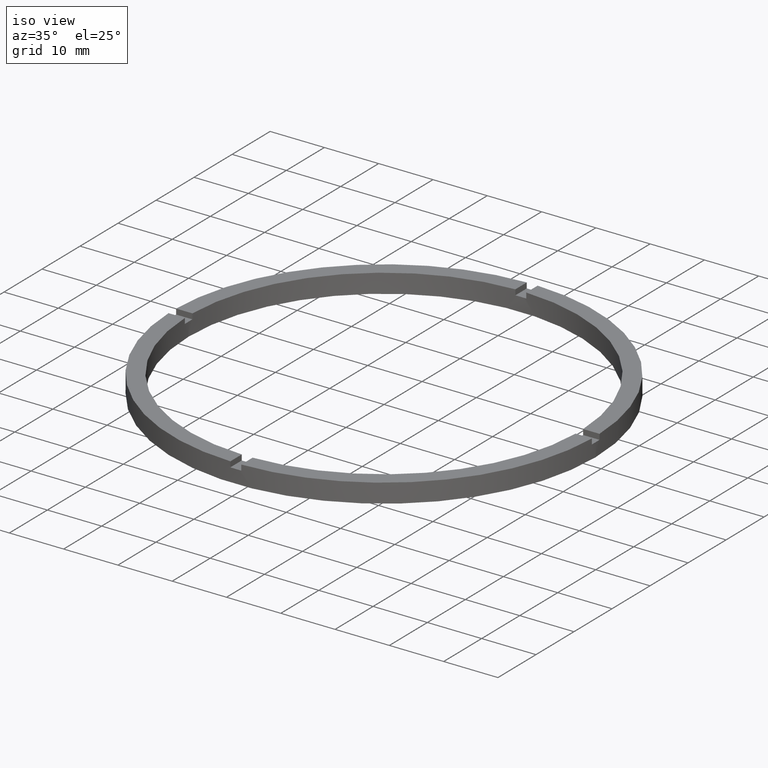
[diagram: clean part render]
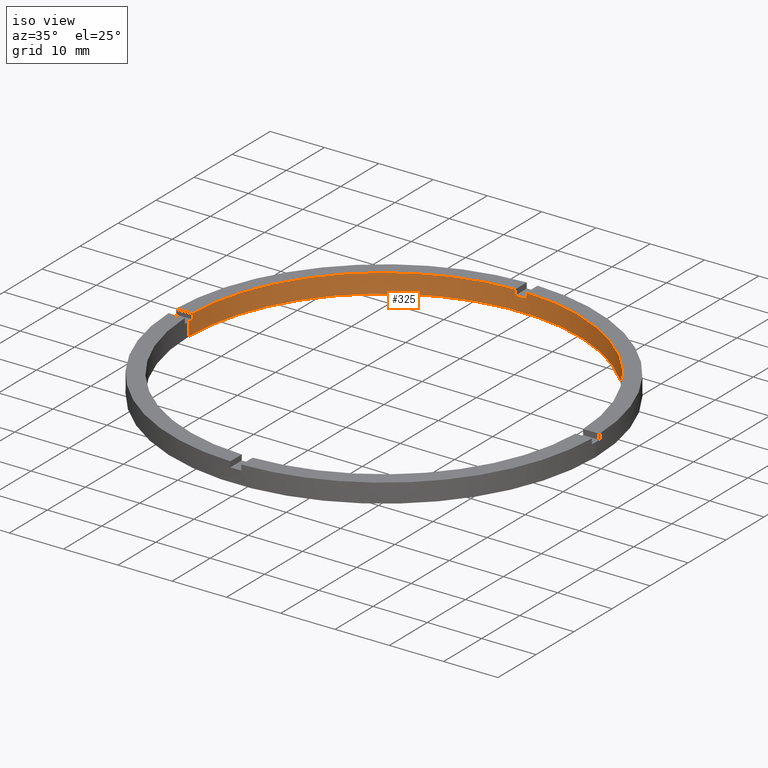
[diagram: same view with one face highlighted and labeled with its STEP entity id]
A machine part, iso view. The second image highlights one B-rep face of the part: STEP entity #325.
In plain terms, the highlighted cylindrical surface (partial cylindrical patch) has radius 36 mm, axis along (-0, -0, -1).
Its self-contained STEP definition (entity closure, byte-faithful):
#3 = AXIS2_PLACEMENT_3D ( 'NONE', #327, #505, #560 ) ;
#9 = DIRECTION ( 'NONE',  ( -0.000000000000000000, -0.000000000000000000, -1.000000000000000000 ) ) ;
#18 = CARTESIAN_POINT ( 'NONE',  ( 0.9999999999999746869, 35.98610843089316091, 2.500000000000000000 ) ) ;
#22 = LINE ( 'NONE', #336, #304 ) ;
#33 = DIRECTION ( 'NONE',  ( 1.000000000000000000, 0.000000000000000000, 0.000000000000000000 ) ) ;
#36 = LINE ( 'NONE', #122, #544 ) ;
#37 = CIRCLE ( 'NONE', #753, 36.00000000000000000 ) ;
#43 = CARTESIAN_POINT ( 'NONE',  ( 0.000000000000000000, 0.000000000000000000, 2.500000000000000000 ) ) ;
#46 = DIRECTION ( 'NONE',  ( 1.000000000000000000, 0.000000000000000000, 0.000000000000000000 ) ) ;
#48 = FACE_OUTER_BOUND ( 'NONE', #167, .T. ) ;
#63 = DIRECTION ( 'NONE',  ( -0.000000000000000000, -0.000000000000000000, -1.000000000000000000 ) ) ;
#64 = VECTOR ( 'NONE', #63, 1000.000000000000000 ) ;
#72 = LINE ( 'NONE', #145, #348 ) ;
#83 = CARTESIAN_POINT ( 'NONE',  ( -36.00000000000000000, 0.000000000000000000, 0.000000000000000000 ) ) ;
#85 = CIRCLE ( 'NONE', #398, 36.00000000000000000 ) ;
#91 = CARTESIAN_POINT ( 'NONE',  ( -35.98610843089316091, 0.9999999999999726885, 3.500000000000000000 ) ) ;
#103 = VECTOR ( 'NONE', #265, 1000.000000000000000 ) ;
#110 = DIRECTION ( 'NONE',  ( 0.000000000000000000, 0.000000000000000000, 1.000000000000000000 ) ) ;
#111 = VERTEX_POINT ( 'NONE', #490 ) ;
#114 = LINE ( 'NONE', #214, #103 ) ;
#118 = AXIS2_PLACEMENT_3D ( 'NONE', #686, #396, #33 ) ;
#122 = CARTESIAN_POINT ( 'NONE',  ( -1.000000000000025313, 35.98610843089315381, 3.500000000000000000 ) ) ;
#127 = EDGE_CURVE ( 'NONE', #637, #231, #22, .T. ) ;
#128 = EDGE_CURVE ( 'NONE', #462, #248, #531, .T. ) ;
#132 = CARTESIAN_POINT ( 'NONE',  ( -1.000000000000025313, 35.98610843089315381, 3.500000000000000000 ) ) ;
#142 = DIRECTION ( 'NONE',  ( 1.000000000000000000, 0.000000000000000000, 0.000000000000000000 ) ) ;
#145 = CARTESIAN_POINT ( 'NONE',  ( 36.00000000000000000, 4.408728476930470856E-15, 3.500000000000000000 ) ) ;
#167 = EDGE_LOOP ( 'NONE', ( #736, #443, #756, #674, #441, #749, #196, #752, #714, #697, #677, #700 ) ) ;
#172 = EDGE_CURVE ( 'NONE', #227, #111, #562, .T. ) ;
#173 = CARTESIAN_POINT ( 'NONE',  ( -36.00000000000000000, 0.000000000000000000, 3.500000000000000000 ) ) ;
#175 = DIRECTION ( 'NONE',  ( 0.000000000000000000, -0.000000000000000000, 1.000000000000000000 ) ) ;
#186 = AXIS2_PLACEMENT_3D ( 'NONE', #502, #175, #46 ) ;
#189 = VERTEX_POINT ( 'NONE', #588 ) ;
#192 = CARTESIAN_POINT ( 'NONE',  ( 0.000000000000000000, 0.000000000000000000, 3.500000000000000000 ) ) ;
#196 = ORIENTED_EDGE ( 'NONE', *, *, #250, .F. ) ;
#197 = VERTEX_POINT ( 'NONE', #529 ) ;
#214 = CARTESIAN_POINT ( 'NONE',  ( 35.98610843089316091, 0.9999999999998425704, 3.500000000000000000 ) ) ;
#227 = VERTEX_POINT ( 'NONE', #132 ) ;
#231 = VERTEX_POINT ( 'NONE', #702 ) ;
#242 = CARTESIAN_POINT ( 'NONE',  ( -35.98610843089316091, 0.9999999999999726885, 2.500000000000000000 ) ) ;
#244 = CARTESIAN_POINT ( 'NONE',  ( 0.000000000000000000, 0.000000000000000000, 0.000000000000000000 ) ) ;
#248 = VERTEX_POINT ( 'NONE', #731 ) ;
#250 = EDGE_CURVE ( 'NONE', #227, #760, #36, .T. ) ;
#265 = DIRECTION ( 'NONE',  ( -0.000000000000000000, -0.000000000000000000, -1.000000000000000000 ) ) ;
#266 = DIRECTION ( 'NONE',  ( -1.000000000000000000, 0.000000000000000000, 0.000000000000000000 ) ) ;
#275 = EDGE_CURVE ( 'NONE', #189, #644, #37, .T. ) ;
#304 = VECTOR ( 'NONE', #393, 1000.000000000000000 ) ;
#311 = EDGE_CURVE ( 'NONE', #248, #644, #573, .T. ) ;
#312 = AXIS2_PLACEMENT_3D ( 'NONE', #313, #368, #477 ) ;
#313 = CARTESIAN_POINT ( 'NONE',  ( 0.000000000000000000, 0.000000000000000000, 3.500000000000000000 ) ) ;
#318 = EDGE_CURVE ( 'NONE', #637, #760, #568, .T. ) ;
#325 = ADVANCED_FACE ( 'NONE', ( #48 ), #580, .F. ) ;
#327 = CARTESIAN_POINT ( 'NONE',  ( 0.000000000000000000, 0.000000000000000000, 3.500000000000000000 ) ) ;
#336 = CARTESIAN_POINT ( 'NONE',  ( 0.9999999999999746869, 35.98610843089316091, 3.500000000000000000 ) ) ;
#348 = VECTOR ( 'NONE', #564, 1000.000000000000000 ) ;
#368 = DIRECTION ( 'NONE',  ( 0.000000000000000000, 0.000000000000000000, 1.000000000000000000 ) ) ;
#371 = AXIS2_PLACEMENT_3D ( 'NONE', #192, #521, #266 ) ;
#379 = EDGE_CURVE ( 'NONE', #690, #189, #72, .T. ) ;
#385 = DIRECTION ( 'NONE',  ( 0.000000000000000000, 0.000000000000000000, 1.000000000000000000 ) ) ;
#393 = DIRECTION ( 'NONE',  ( 0.000000000000000000, 0.000000000000000000, 1.000000000000000000 ) ) ;
#396 = DIRECTION ( 'NONE',  ( 0.000000000000000000, 0.000000000000000000, 1.000000000000000000 ) ) ;
#398 = AXIS2_PLACEMENT_3D ( 'NONE', #43, #110, #694 ) ;
#441 = ORIENTED_EDGE ( 'NONE', *, *, #127, .F. ) ;
#443 = ORIENTED_EDGE ( 'NONE', *, *, #585, .T. ) ;
#462 = VERTEX_POINT ( 'NONE', #242 ) ;
#477 = DIRECTION ( 'NONE',  ( 1.000000000000000000, 0.000000000000000000, 0.000000000000000000 ) ) ;
#490 = CARTESIAN_POINT ( 'NONE',  ( -35.98610843089316091, 0.9999999999999726885, 3.500000000000000000 ) ) ;
#499 = VERTEX_POINT ( 'NONE', #520 ) ;
#502 = CARTESIAN_POINT ( 'NONE',  ( 0.000000000000000000, 0.000000000000000000, 2.500000000000000000 ) ) ;
#505 = DIRECTION ( 'NONE',  ( 0.000000000000000000, 0.000000000000000000, 1.000000000000000000 ) ) ;
#520 = CARTESIAN_POINT ( 'NONE',  ( 35.98610843089316091, 0.9999999999998425704, 2.500000000000000000 ) ) ;
#521 = DIRECTION ( 'NONE',  ( -0.000000000000000000, -0.000000000000000000, -1.000000000000000000 ) ) ;
#529 = CARTESIAN_POINT ( 'NONE',  ( 35.98610843089316091, 0.9999999999998425704, 3.500000000000000000 ) ) ;
#531 = CIRCLE ( 'NONE', #118, 36.00000000000000000 ) ;
#544 = VECTOR ( 'NONE', #9, 1000.000000000000000 ) ;
#550 = EDGE_CURVE ( 'NONE', #197, #231, #599, .T. ) ;
#560 = DIRECTION ( 'NONE',  ( 1.000000000000000000, 0.000000000000000000, 0.000000000000000000 ) ) ;
#562 = CIRCLE ( 'NONE', #3, 36.00000000000000000 ) ;
#564 = DIRECTION ( 'NONE',  ( -0.000000000000000000, -0.000000000000000000, -1.000000000000000000 ) ) ;
#568 = CIRCLE ( 'NONE', #186, 36.00000000000000000 ) ;
#573 = LINE ( 'NONE', #173, #64 ) ;
#580 = CYLINDRICAL_SURFACE ( 'NONE', #371, 36.00000000000000000 ) ;
#585 = EDGE_CURVE ( 'NONE', #690, #499, #85, .T. ) ;
#588 = CARTESIAN_POINT ( 'NONE',  ( 36.00000000000000000, 4.408728476930470856E-15, 0.000000000000000000 ) ) ;
#594 = VECTOR ( 'NONE', #631, 1000.000000000000000 ) ;
#599 = CIRCLE ( 'NONE', #312, 36.00000000000000000 ) ;
#606 = LINE ( 'NONE', #91, #594 ) ;
#631 = DIRECTION ( 'NONE',  ( 0.000000000000000000, 0.000000000000000000, 1.000000000000000000 ) ) ;
#637 = VERTEX_POINT ( 'NONE', #18 ) ;
#644 = VERTEX_POINT ( 'NONE', #83 ) ;
#674 = ORIENTED_EDGE ( 'NONE', *, *, #550, .T. ) ;
#677 = ORIENTED_EDGE ( 'NONE', *, *, #311, .T. ) ;
#684 = EDGE_CURVE ( 'NONE', #197, #499, #114, .T. ) ;
#686 = CARTESIAN_POINT ( 'NONE',  ( 0.000000000000000000, 0.000000000000000000, 2.500000000000000000 ) ) ;
#690 = VERTEX_POINT ( 'NONE', #751 ) ;
#694 = DIRECTION ( 'NONE',  ( 1.000000000000000000, 0.000000000000000000, 0.000000000000000000 ) ) ;
#697 = ORIENTED_EDGE ( 'NONE', *, *, #128, .T. ) ;
#700 = ORIENTED_EDGE ( 'NONE', *, *, #275, .F. ) ;
#702 = CARTESIAN_POINT ( 'NONE',  ( 0.9999999999999746869, 35.98610843089316091, 3.500000000000000000 ) ) ;
#714 = ORIENTED_EDGE ( 'NONE', *, *, #775, .F. ) ;
#731 = CARTESIAN_POINT ( 'NONE',  ( -36.00000000000000000, 0.000000000000000000, 2.500000000000000000 ) ) ;
#736 = ORIENTED_EDGE ( 'NONE', *, *, #379, .F. ) ;
#745 = CARTESIAN_POINT ( 'NONE',  ( -1.000000000000025313, 35.98610843089315381, 2.500000000000000000 ) ) ;
#749 = ORIENTED_EDGE ( 'NONE', *, *, #318, .T. ) ;
#751 = CARTESIAN_POINT ( 'NONE',  ( 36.00000000000000000, 4.408728476930470856E-15, 2.500000000000000000 ) ) ;
#752 = ORIENTED_EDGE ( 'NONE', *, *, #172, .T. ) ;
#753 = AXIS2_PLACEMENT_3D ( 'NONE', #244, #385, #142 ) ;
#756 = ORIENTED_EDGE ( 'NONE', *, *, #684, .F. ) ;
#760 = VERTEX_POINT ( 'NONE', #745 ) ;
#775 = EDGE_CURVE ( 'NONE', #462, #111, #606, .T. ) ;